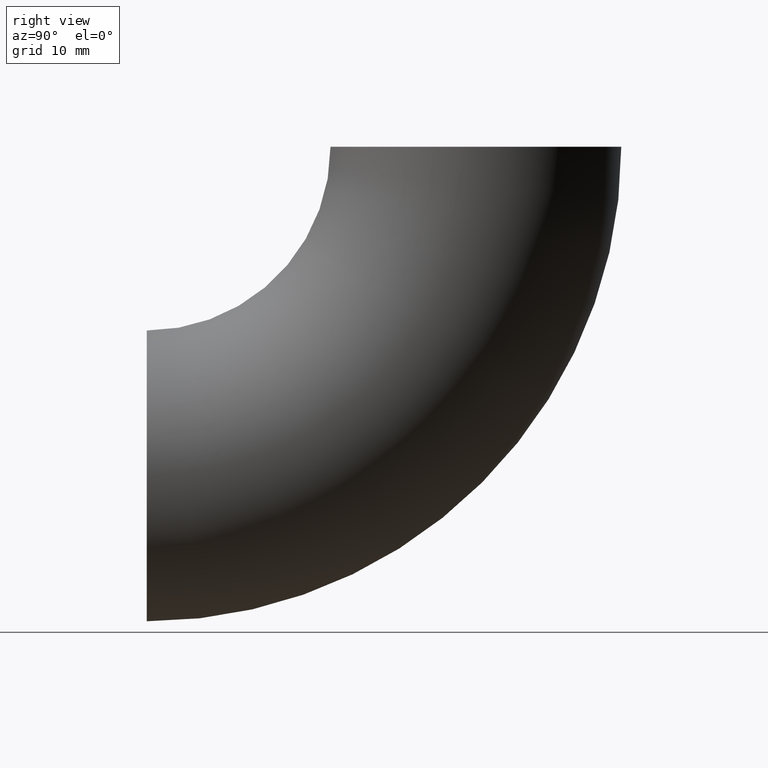
[diagram: clean part render]
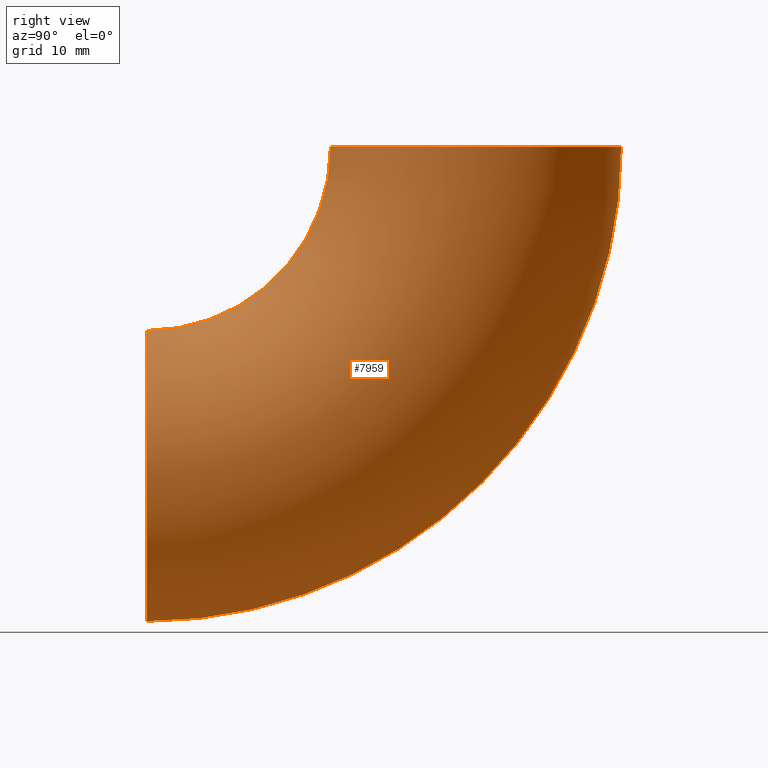
[diagram: same view with one face highlighted and labeled with its STEP entity id]
A machine part, right view. The second image highlights one B-rep face of the part: STEP entity #7959.
In plain terms, the highlighted toroidal blend (fillet) surface has major radius 48 mm and minor (blend) radius 21.2 mm.
Its self-contained STEP definition (entity closure, byte-faithful):
#356 = CIRCLE ( 'NONE', #4687, 69.20000000000000300 ) ;
#456 = EDGE_CURVE ( 'NONE', #4523, #2228, #799, .T. ) ;
#587 = CARTESIAN_POINT ( 'NONE',  ( 2.596251214192388800E-015, 0.0000000000000000000, 0.0000000000000000000 ) ) ;
#799 = CIRCLE ( 'NONE', #9983, 21.19999999999999900 ) ;
#843 = ORIENTED_EDGE ( 'NONE', *, *, #10441, .T. ) ;
#2228 = VERTEX_POINT ( 'NONE', #7295 ) ;
#2262 = CIRCLE ( 'NONE', #5657, 21.19999999999999900 ) ;
#2668 = ORIENTED_EDGE ( 'NONE', *, *, #8291, .T. ) ;
#3048 = DIRECTION ( 'NONE',  ( 0.0000000000000000000, 0.0000000000000000000, 1.000000000000000000 ) ) ;
#3054 = DIRECTION ( 'NONE',  ( -1.000000000000000000, -0.0000000000000000000, -0.0000000000000000000 ) ) ;
#3089 = CARTESIAN_POINT ( 'NONE',  ( 0.0000000000000000000, 48.00000000000000000, -2.939152317953647900E-015 ) ) ;
#3897 = DIRECTION ( 'NONE',  ( 0.0000000000000000000, -1.000000000000000000, 6.123233995736766000E-017 ) ) ;
#4246 = CARTESIAN_POINT ( 'NONE',  ( 0.0000000000000000000, 0.0000000000000000000, 0.0000000000000000000 ) ) ;
#4523 = VERTEX_POINT ( 'NONE', #8281 ) ;
#4687 = AXIS2_PLACEMENT_3D ( 'NONE', #4246, #7660, #9999 ) ;
#4791 = CARTESIAN_POINT ( 'NONE',  ( 0.0000000000000000000, 0.0000000000000000000, -48.00000000000000000 ) ) ;
#5402 = AXIS2_PLACEMENT_3D ( 'NONE', #587, #3054, #8785 ) ;
#5657 = AXIS2_PLACEMENT_3D ( 'NONE', #4791, #7329, #7288 ) ;
#6151 = VERTEX_POINT ( 'NONE', #8358 ) ;
#6628 = EDGE_LOOP ( 'NONE', ( #9914, #9929, #843, #2668 ) ) ;
#7106 = AXIS2_PLACEMENT_3D ( 'NONE', #7134, #7982, #3048 ) ;
#7134 = CARTESIAN_POINT ( 'NONE',  ( 0.0000000000000000000, 0.0000000000000000000, 0.0000000000000000000 ) ) ;
#7288 = DIRECTION ( 'NONE',  ( 0.0000000000000000000, 0.0000000000000000000, 1.000000000000000000 ) ) ;
#7295 = CARTESIAN_POINT ( 'NONE',  ( 0.0000000000000000000, 69.20000000000000300, -4.237277925049843100E-015 ) ) ;
#7329 = DIRECTION ( 'NONE',  ( 0.0000000000000000000, 1.000000000000000000, 0.0000000000000000000 ) ) ;
#7660 = DIRECTION ( 'NONE',  ( -1.000000000000000000, -0.0000000000000000000, -0.0000000000000000000 ) ) ;
#7959 = ADVANCED_FACE ( 'NONE', ( #9103 ), #8820, .T. ) ;
#7982 = DIRECTION ( 'NONE',  ( -1.000000000000000000, -0.0000000000000000000, -0.0000000000000000000 ) ) ;
#8178 = CIRCLE ( 'NONE', #5402, 26.80000000000000100 ) ;
#8180 = EDGE_CURVE ( 'NONE', #2228, #10517, #356, .T. ) ;
#8281 = CARTESIAN_POINT ( 'NONE',  ( 0.0000000000000000000, 26.80000000000000100, -1.641026710857453300E-015 ) ) ;
#8291 = EDGE_CURVE ( 'NONE', #6151, #10517, #2262, .T. ) ;
#8358 = CARTESIAN_POINT ( 'NONE',  ( 0.0000000000000000000, 0.0000000000000000000, -26.80000000000000100 ) ) ;
#8785 = DIRECTION ( 'NONE',  ( 0.0000000000000000000, 0.0000000000000000000, 1.000000000000000000 ) ) ;
#8818 = DIRECTION ( 'NONE',  ( 0.0000000000000000000, 6.123233995736766000E-017, 1.000000000000000000 ) ) ;
#8820 = TOROIDAL_SURFACE ( 'NONE', #7106, 48.00000000000000000, 21.19999999999999900 ) ;
#9103 = FACE_OUTER_BOUND ( 'NONE', #6628, .T. ) ;
#9130 = CARTESIAN_POINT ( 'NONE',  ( 0.0000000000000000000, 0.0000000000000000000, -69.20000000000000300 ) ) ;
#9914 = ORIENTED_EDGE ( 'NONE', *, *, #8180, .F. ) ;
#9929 = ORIENTED_EDGE ( 'NONE', *, *, #456, .F. ) ;
#9983 = AXIS2_PLACEMENT_3D ( 'NONE', #3089, #8818, #3897 ) ;
#9999 = DIRECTION ( 'NONE',  ( 0.0000000000000000000, 0.0000000000000000000, 1.000000000000000000 ) ) ;
#10441 = EDGE_CURVE ( 'NONE', #4523, #6151, #8178, .T. ) ;
#10517 = VERTEX_POINT ( 'NONE', #9130 ) ;